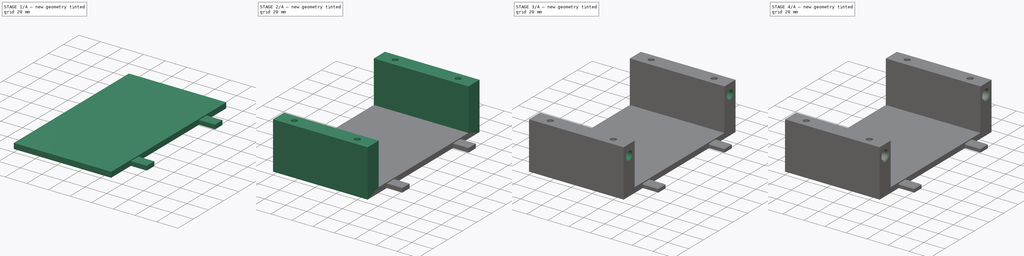
[diagram: build sequence overview — one tinted view per stage of 4, left to right]
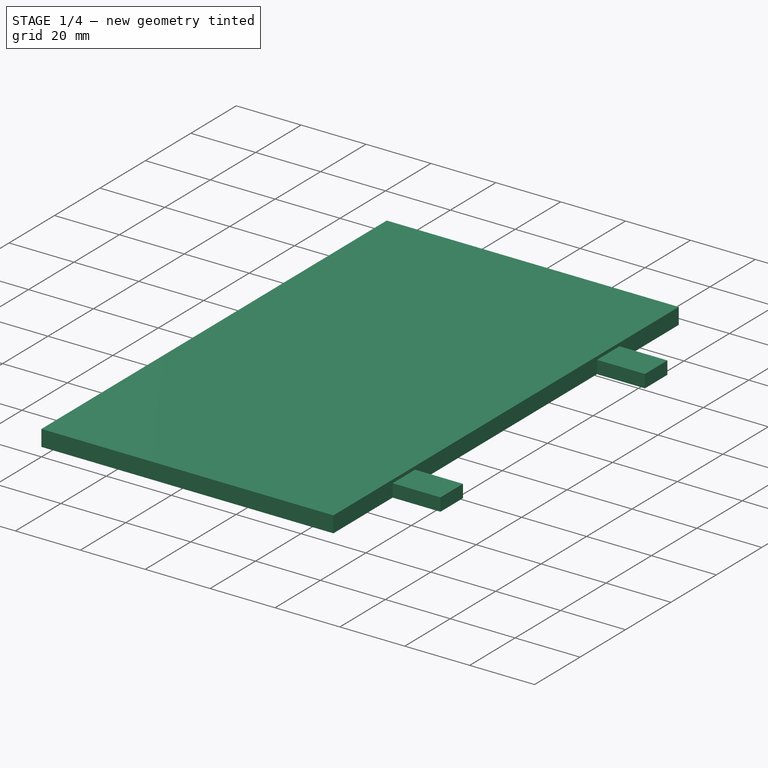
[diagram: stage 1 of 4 — iso view after this stage's code; geometry added in this stage tinted green]
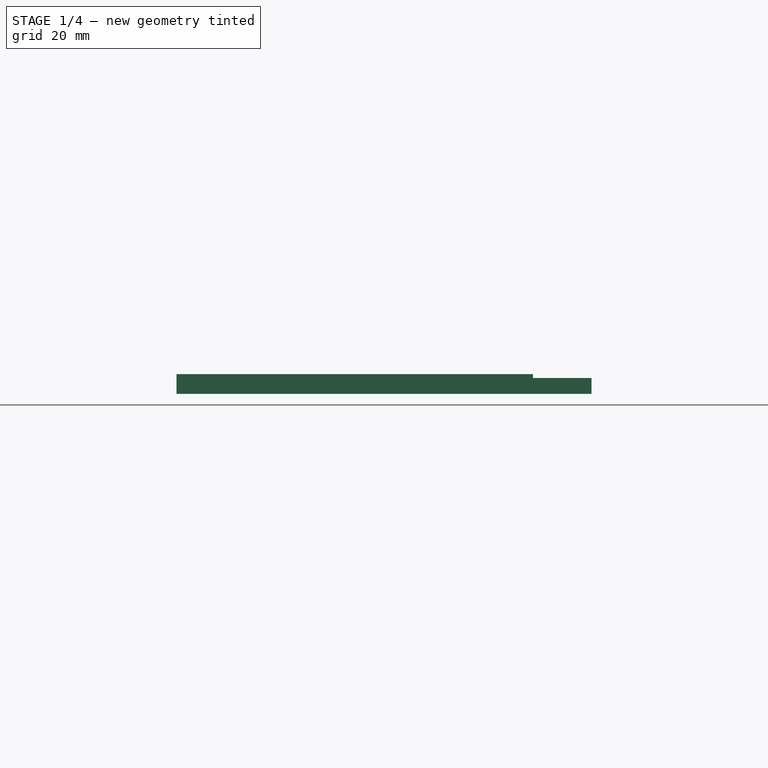
[diagram: stage 1 of 4 — front view after this stage's code; geometry added in this stage tinted green]
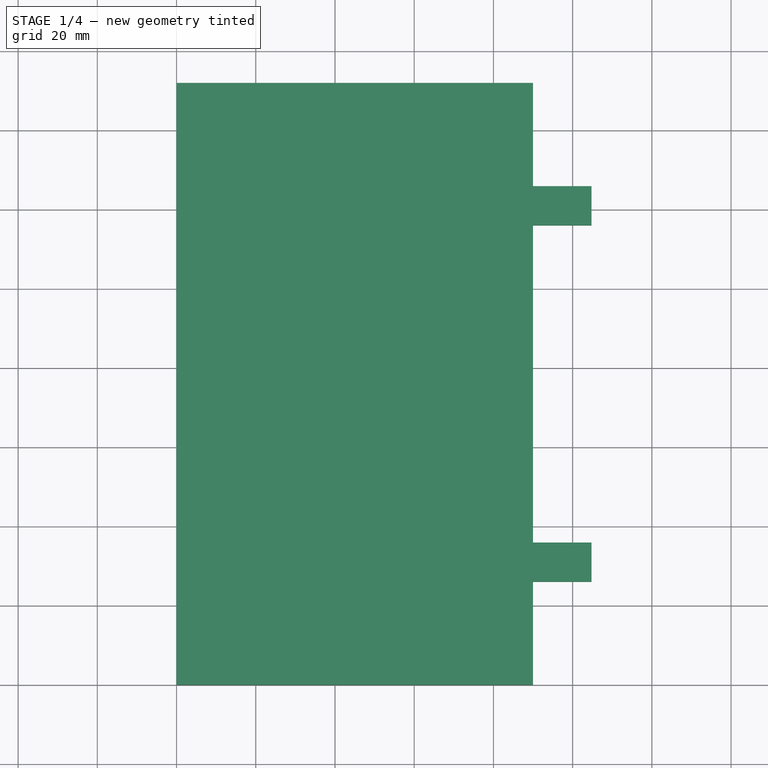
[diagram: stage 1 of 4 — top view after this stage's code; geometry added in this stage tinted green]
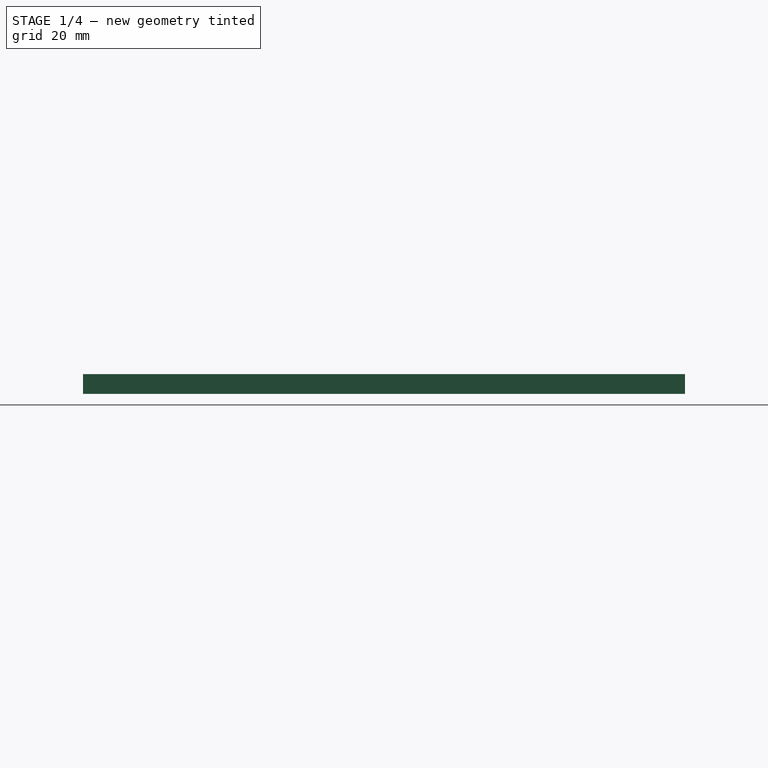
[diagram: stage 1 of 4 — right view after this stage's code; geometry added in this stage tinted green]
FCSTD DOCUMENT  (FreeCAD 1.0R39319 (Git))
Label: C1047
License: All rights reserved
objects: Sketcher::SketchObject×8, PartDesign::Pocket×5, PartDesign::Pad×3, PartDesign::Chamfer×2, PartDesign::Body×1
note: 47 computed .brp shape members not serialized (recipe doc carries the construction recipe); baked Part::Feature solids carry a one-line shape summary decoded from their .brp

FEATURE [Sketcher::SketchObject] Sketch
  ArcFitTolerance = 1e-06
  AttachmentSupport = -> [XY_Plane]
  FullyConstrained = true
  MakeInternals = false
  MapMode = 5
  sketch-geometry (4):
    g0: LineSegment StartX=0 StartY=0 StartZ=0 EndX=90 EndY=0 EndZ=0
    g1: LineSegment StartX=90 StartY=0 StartZ=0 EndX=90 EndY=152 EndZ=0
    g2: LineSegment StartX=90 StartY=152 StartZ=0 EndX=0 EndY=152 EndZ=0
    g3: LineSegment StartX=0 StartY=152 StartZ=0 EndX=0 EndY=0 EndZ=0
  constraints (11):
    c: Coincident(g0,g1)
    c: Coincident(g1,g2)
    c: Coincident(g2,g3)
    c: Coincident(g3,g0)
    c: Horizontal(g0)
    c: Horizontal(g2)
    c: Vertical(g1)
    c: Vertical(g3)
    c: Coincident(g0,g-1)
    c: DistanceY(g3,g3) = 152
    c: DistanceX(g2,g2) = 90
FEATURE [PartDesign::Pad] Pad
  Direction = (0,0,1)
  Length = 5
  Length2 = 10
  Profile = -> Sketch
  ReferenceAxis = -> Sketch [N_Axis]
  Refine = true
  Suppressed = false
  Type = 0
FEATURE [Sketcher::SketchObject] Sketch001
  ArcFitTolerance = 1e-06
  AttachmentSupport = -> [Pad]
  ExternalGeometry = -> [Pad]
  FullyConstrained = true
  MakeInternals = false
  MapMode = 5
  Placement = pos=(0,0,0) rot=(1,0,0;3.14159rad)
  sketch-geometry (13):
    g0: LineSegment [constr] StartX=90 StartY=0 StartZ=0 EndX=104.75 EndY=-26.05 EndZ=0
    g1: LineSegment [constr] StartX=90 StartY=-152 StartZ=0 EndX=104.75 EndY=-125.95 EndZ=0
    g2: LineSegment [constr] StartX=104.75 StartY=-35.95 StartZ=0 EndX=104.75 EndY=-116.05 EndZ=0
    g3: LineSegment StartX=104.75 StartY=-26.05 StartZ=0 EndX=90 EndY=-26.05 EndZ=0
    g4: LineSegment StartX=90 StartY=-26.05 StartZ=0 EndX=90 EndY=-35.95 EndZ=0
    g5: LineSegment StartX=90 StartY=-35.95 StartZ=0 EndX=104.75 EndY=-35.95 EndZ=0
    g6: LineSegment StartX=104.75 StartY=-35.95 StartZ=0 EndX=104.75 EndY=-26.05 EndZ=0
    g7: LineSegment StartX=104.75 StartY=-116.05 StartZ=0 EndX=90 EndY=-116.05 EndZ=0
    g8: LineSegment StartX=90 StartY=-116.05 StartZ=0 EndX=90 EndY=-125.95 EndZ=0
    g9: LineSegment StartX=90 StartY=-125.95 StartZ=0 EndX=104.75 EndY=-125.95 EndZ=0
    g10: LineSegment StartX=104.75 StartY=-125.95 StartZ=0 EndX=104.75 EndY=-116.05 EndZ=0
    g11: GeomPoint X=104.75 Y=-31 Z=0
    g12: GeomPoint X=104.75 Y=-121 Z=0
  constraints (32):
    c: Coincident(g0,g-5)
    c: Coincident(g1,g-5)
    c: Coincident(g3,g4)
    c: Coincident(g4,g5)
    c: Coincident(g5,g6)
    c: Coincident(g6,g3)
    c: Horizontal(g3)
    c: Horizontal(g5)
    c: Vertical(g4)
    c: Vertical(g6)
    c: Coincident(g3,g0)
    c: PointOnObject(g4,g-5)
    c: Coincident(g7,g8)
    c: Coincident(g8,g9)
    c: Coincident(g9,g10)
    c: Coincident(g10,g7)
    c: Horizontal(g7)
    c: Horizontal(g9)
    c: Vertical(g8)
    c: Vertical(g10)
    c: Coincident(g7,g2)
    c: PointOnObject(g8,g-5)
    c: Coincident(g1,g9)
    c: Coincident(g5,g2)
    c: Vertical(g2)
    c: Equal(g1,g0)
    c: Equal(g10,g6)
    c: DistanceY(g6,g6) = 9.9
    c: DistanceX(g3,g3) = 14.75
    c: Symmetric(g6,g6,g11)
    c: Symmetric(g10,g10,g12)
    c: DistanceY(g12,g11) = 90
FEATURE [PartDesign::Pad] Pad001
  BaseFeature = -> Pad
  Direction = (0,0,-1)
  Length = 4
  Length2 = 10
  Profile = -> Sketch001
  ReferenceAxis = -> Sketch001 [N_Axis]
  Refine = true
  Reversed = true
  Suppressed = false
  Type = 0
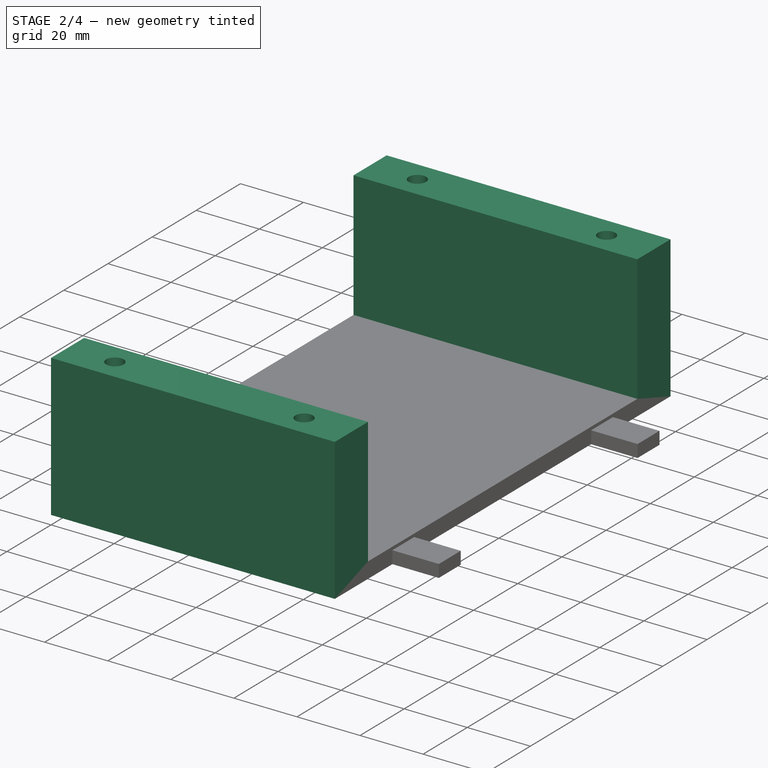
[diagram: stage 2 of 4 — iso view after this stage's code; geometry added in this stage tinted green]
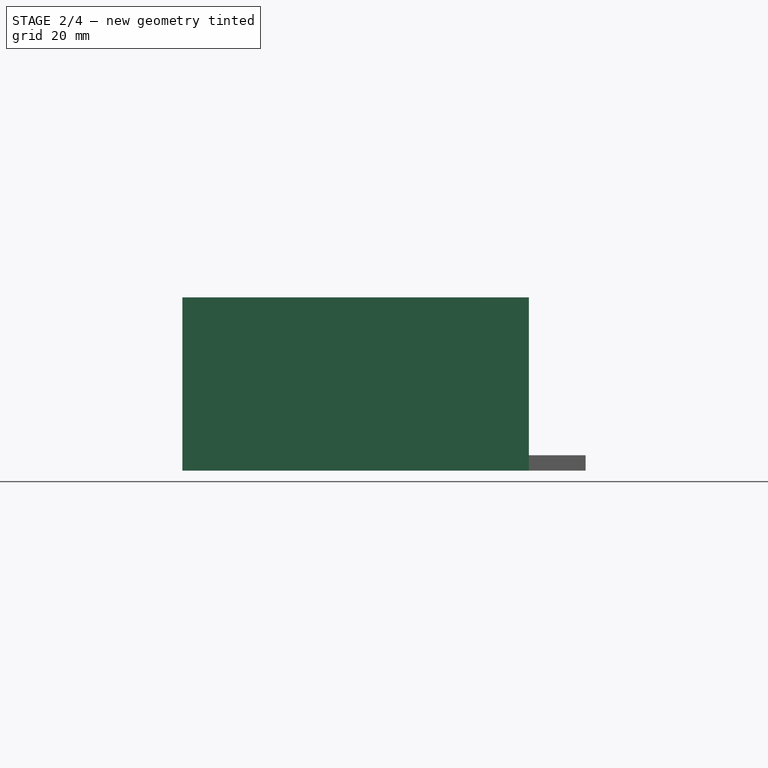
[diagram: stage 2 of 4 — front view after this stage's code; geometry added in this stage tinted green]
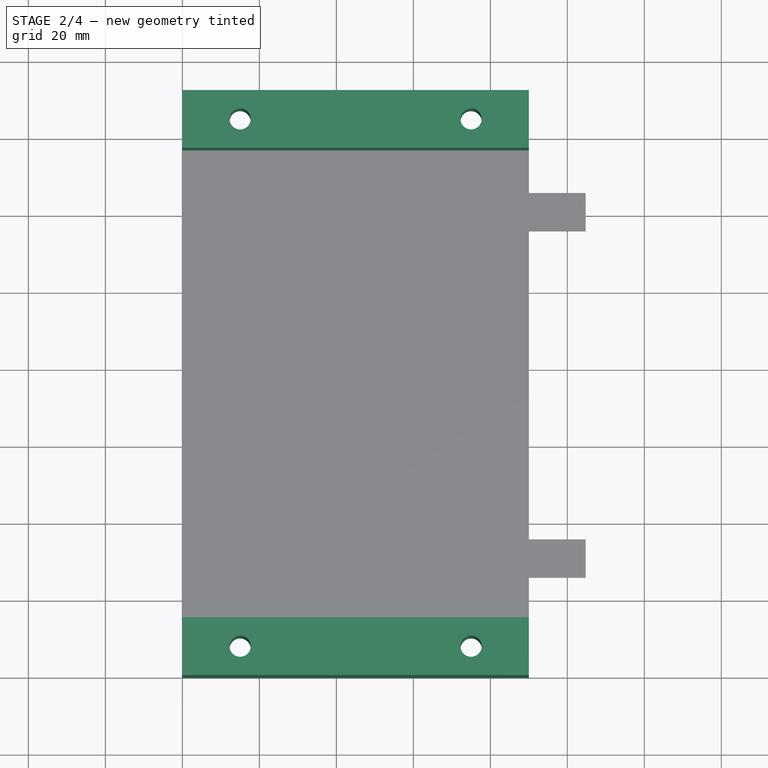
[diagram: stage 2 of 4 — top view after this stage's code; geometry added in this stage tinted green]
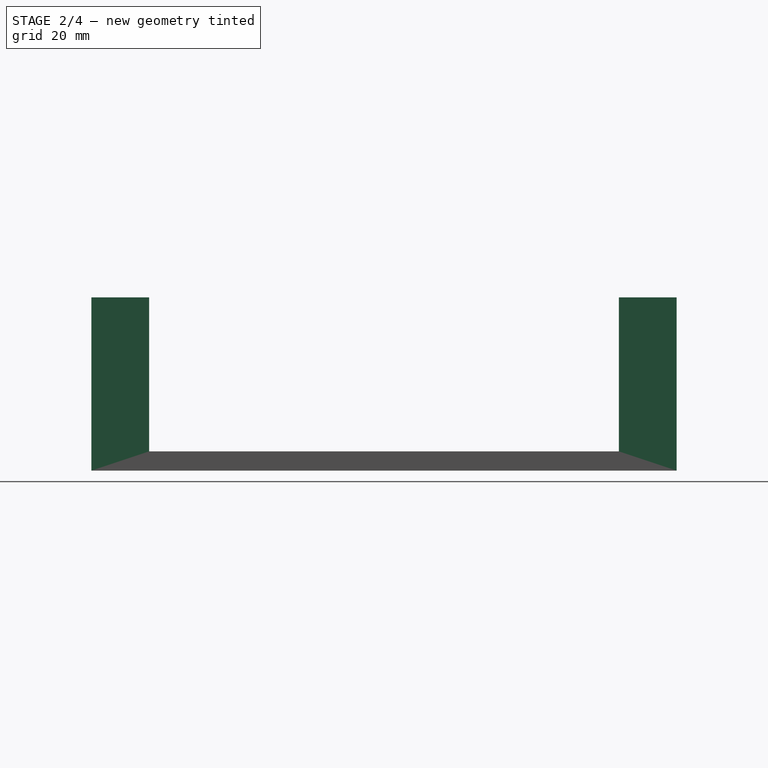
[diagram: stage 2 of 4 — right view after this stage's code; geometry added in this stage tinted green]
FEATURE [Sketcher::SketchObject] Sketch002
  ArcFitTolerance = 1e-06
  AttachmentSupport = -> [Pad001]
  ExternalGeometry = -> [Pad001]
  FullyConstrained = true
  MakeInternals = false
  MapMode = 5
  Placement = pos=(0,0,0) rot=(1,0,0;3.14159rad)
  sketch-geometry (11):
    g0: LineSegment StartX=0 StartY=-26 StartZ=0 EndX=0 EndY=-36 EndZ=0
    g1: LineSegment StartX=0 StartY=-36 StartZ=0 EndX=15 EndY=-36 EndZ=0
    g2: LineSegment StartX=15 StartY=-36 StartZ=0 EndX=15 EndY=-26 EndZ=0
    g3: LineSegment StartX=15 StartY=-26 StartZ=0 EndX=0 EndY=-26 EndZ=0
    g4: LineSegment StartX=0 StartY=-116 StartZ=0 EndX=0 EndY=-126 EndZ=0
    g5: LineSegment StartX=0 StartY=-126 StartZ=0 EndX=15 EndY=-126 EndZ=0
    g6: LineSegment StartX=15 StartY=-126 StartZ=0 EndX=15 EndY=-116 EndZ=0
    g7: LineSegment StartX=15 StartY=-116 StartZ=0 EndX=0 EndY=-116 EndZ=0
    g8: LineSegment [constr] StartX=15 StartY=-126 StartZ=0 EndX=0 EndY=-152 EndZ=0
    g9: LineSegment [constr] StartX=15 StartY=-116 StartZ=0 EndX=15 EndY=-36 EndZ=0
    g10: LineSegment [constr] StartX=15 StartY=-26 StartZ=0 EndX=0 EndY=0 EndZ=0
  constraints (30):
    c: Coincident(g0,g1)
    c: Coincident(g1,g2)
    c: Coincident(g2,g3)
    c: Coincident(g3,g0)
    c: Vertical(g0)
    c: Vertical(g2)
    c: Horizontal(g1)
    c: Horizontal(g3)
    c: PointOnObject(g0,g-3)
    c: Coincident(g4,g5)
    c: Coincident(g5,g6)
    c: Coincident(g6,g7)
    c: Coincident(g7,g4)
    c: Vertical(g4)
    c: Vertical(g6)
    c: Horizontal(g5)
    c: Horizontal(g7)
    c: PointOnObject(g4,g-3)
    c: Coincident(g8,g5)
    c: Coincident(g8,g-3)
    c: Coincident(g9,g6)
    c: Coincident(g9,g1)
    c: Vertical(g9)
    c: Coincident(g10,g2)
    c: Coincident(g10,g-1)
    c: DistanceY(g9,g9) = 80
    c: DistanceY(g2,g2) = 10
    c: DistanceX(g3,g3) = 15
    c: Equal(g6,g2)
    c: Equal(g10,g8)
FEATURE [PartDesign::Pocket] Pocket
  BaseFeature = -> Pad001
  Direction = (0,0,1)
  Length = 4
  Length2 = 5
  Profile = -> Sketch002
  ReferenceAxis = -> Sketch002 [N_Axis]
  Refine = true
  Suppressed = false
  Type = 0
FEATURE [Sketcher::SketchObject] Sketch003
  ArcFitTolerance = 1e-06
  AttachmentSupport = -> [Pocket]
  ExternalGeometry = -> [Pocket]
  FullyConstrained = true
  MakeInternals = false
  MapMode = 5
  Placement = pos=(0,0,5) rot=(0,0,1;0rad)
  sketch-geometry (8):
    g0: LineSegment StartX=90 StartY=152 StartZ=0 EndX=0 EndY=152 EndZ=0
    g1: LineSegment StartX=0 StartY=152 StartZ=0 EndX=0 EndY=137 EndZ=0
    g2: LineSegment StartX=0 StartY=137 StartZ=0 EndX=90 EndY=137 EndZ=0
    g3: LineSegment StartX=90 StartY=137 StartZ=0 EndX=90 EndY=152 EndZ=0
    g4: LineSegment StartX=0 StartY=0 StartZ=0 EndX=90 EndY=0 EndZ=0
    g5: LineSegment StartX=90 StartY=0 StartZ=0 EndX=90 EndY=15 EndZ=0
    g6: LineSegment StartX=90 StartY=15 StartZ=0 EndX=0 EndY=15 EndZ=0
    g7: LineSegment StartX=0 StartY=15 StartZ=0 EndX=0 EndY=0 EndZ=0
  constraints (20):
    c: Coincident(g0,g1)
    c: Coincident(g1,g2)
    c: Coincident(g2,g3)
    c: Coincident(g3,g0)
    c: Horizontal(g2)
    c: Vertical(g1)
    c: Vertical(g3)
    c: Coincident(g0,g-3)
    c: Coincident(g4,g5)
    c: Coincident(g5,g6)
    c: Coincident(g6,g7)
    c: Coincident(g7,g4)
    c: Horizontal(g6)
    c: Vertical(g5)
    c: Vertical(g7)
    c: Coincident(g4,g-1)
    c: Coincident(g4,g-4)
    c: Coincident(g0,g-3)
    c: Equal(g3,g5)
    c: DistanceY(g3,g3) = 15
FEATURE [PartDesign::Pad] Pad002
  BaseFeature = -> Pocket
  Direction = (0,0,1)
  Length = 40
  Length2 = 10
  Profile = -> Sketch003
  ReferenceAxis = -> Sketch003 [N_Axis]
  Refine = true
  Suppressed = false
  Type = 0
FEATURE [Sketcher::SketchObject] Sketch004
  ArcFitTolerance = 1e-06
  AttachmentSupport = -> [Pad002]
  ExternalGeometry = -> [Pad002]
  FullyConstrained = true
  MakeInternals = false
  MapMode = 5
  Placement = pos=(0,0,0) rot=(1,0,0;3.14159rad)
  sketch-geometry (10):
    g0: Circle CenterX=15 CenterY=-7.5 CenterZ=0 NormalX=0 NormalY=0 NormalZ=1 AngleXU=0 Radius=2.75
    g1: Circle CenterX=75 CenterY=-7.5 CenterZ=0 NormalX=0 NormalY=0 NormalZ=1 AngleXU=0 Radius=2.75
    g2: Circle CenterX=75 CenterY=-144.5 CenterZ=0 NormalX=0 NormalY=0 NormalZ=1 AngleXU=0 Radius=2.75
    g3: Circle CenterX=15 CenterY=-144.5 CenterZ=0 NormalX=0 NormalY=0 NormalZ=1 AngleXU=0 Radius=2.75
    g4: LineSegment [constr] StartX=75 StartY=-7.5 StartZ=0 EndX=15 EndY=-7.5 EndZ=0
    g5: LineSegment [constr] StartX=15 StartY=-7.5 StartZ=0 EndX=15 EndY=-144.5 EndZ=0
    g6: LineSegment [constr] StartX=15 StartY=-144.5 StartZ=0 EndX=75 EndY=-144.5 EndZ=0
    g7: LineSegment [constr] StartX=75 StartY=-144.5 StartZ=0 EndX=75 EndY=-7.5 EndZ=0
    g8: LineSegment [constr] StartX=75 StartY=-7.5 StartZ=0 EndX=90 EndY=0 EndZ=0
    g9: LineSegment [constr] StartX=75 StartY=-144.5 StartZ=0 EndX=90 EndY=-152 EndZ=0
  constraints (25):
    c: Equal(g3,g2)
    c: Equal(g0,g1)
    c: Equal(g1,g2)
    c: Diameter(g3) = 5.5
    c: Coincident(g4,g1)
    c: Coincident(g4,g0)
    c: Horizontal(g4)
    c: Coincident(g5,g0)
    c: Coincident(g5,g3)
    c: Vertical(g5)
    c: Coincident(g6,g3)
    c: Coincident(g6,g2)
    c: Coincident(g7,g2)
    c: Coincident(g7,g1)
    c: Horizontal(g6)
    c: Vertical(g7)
    c: DistanceX(g4,g4) = 60
    c: DistanceY(g5,g5) = 137
    c: DistanceX(g-1,g0) = 15
    c: DistanceX(g1,g-3) = 15
    c: Coincident(g8,g1)
    c: Coincident(g8,g-3)
    c: Coincident(g9,g2)
    c: Coincident(g9,g-5)
    c: Equal(g9,g8)
FEATURE [PartDesign::Pocket] Pocket001
  BaseFeature = -> Pad002
  Direction = (0,0,1)
  Length = 5
  Length2 = 5
  Profile = -> Sketch004
  ReferenceAxis = -> Sketch004 [N_Axis]
  Refine = true
  Suppressed = false
  Type = 1
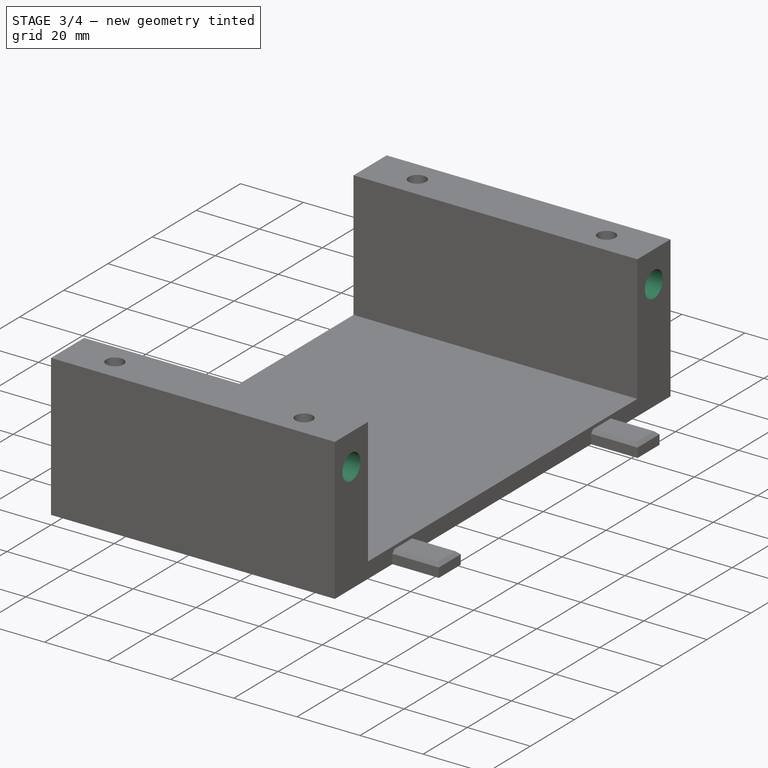
[diagram: stage 3 of 4 — iso view after this stage's code; geometry added in this stage tinted green]
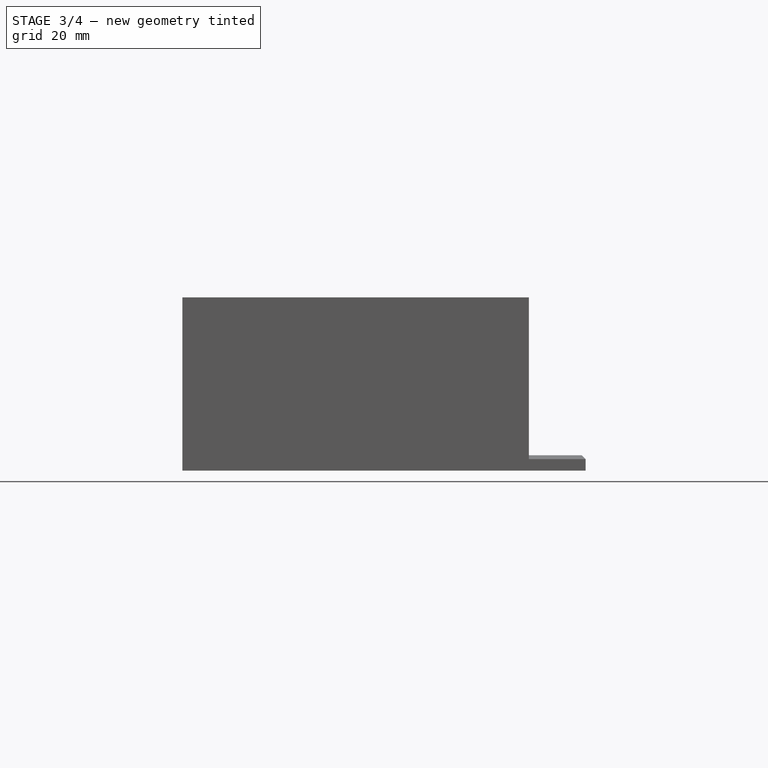
[diagram: stage 3 of 4 — front view after this stage's code; geometry added in this stage tinted green]
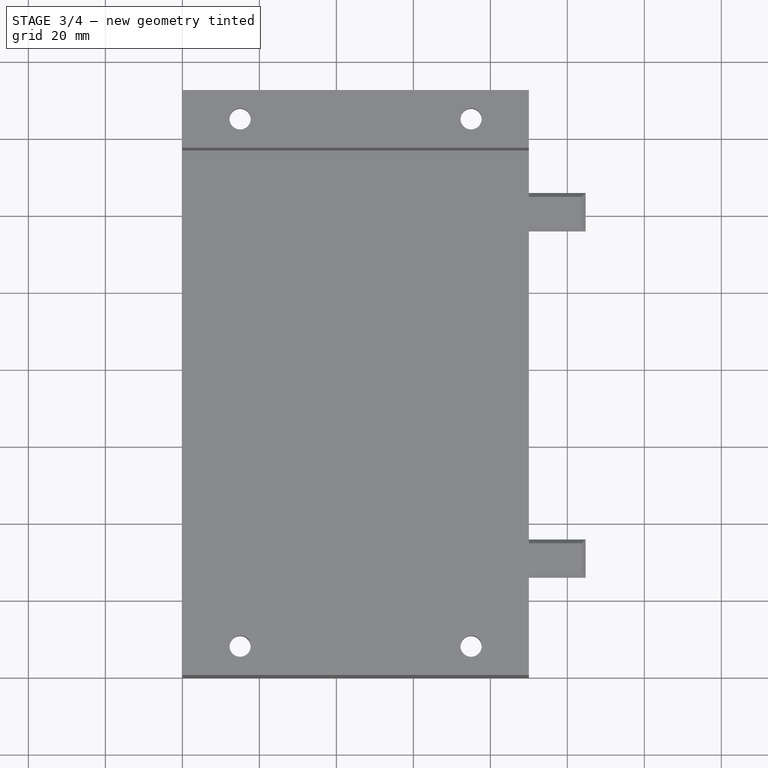
[diagram: stage 3 of 4 — top view after this stage's code; geometry added in this stage tinted green]
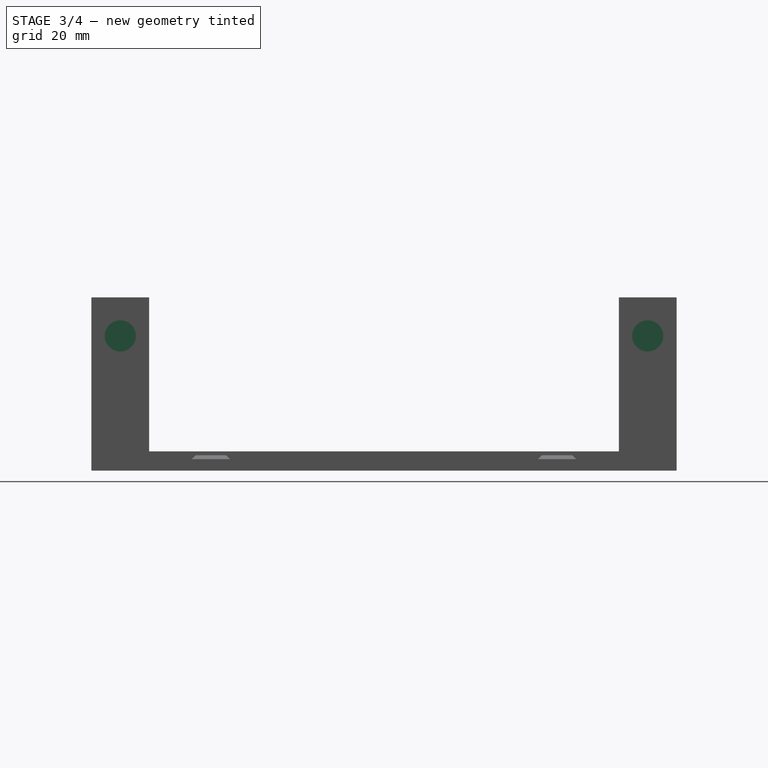
[diagram: stage 3 of 4 — right view after this stage's code; geometry added in this stage tinted green]
FEATURE [Sketcher::SketchObject] Sketch005
  ArcFitTolerance = 1e-06
  AttachmentSupport = -> [Pocket001]
  ExternalGeometry = -> [Pocket001]
  FullyConstrained = true
  MakeInternals = false
  MapMode = 5
  Placement = pos=(0,0,0) rot=(1,0,0;3.14159rad)
  sketch-geometry (4):
    g0: Circle CenterX=15 CenterY=-7.5 CenterZ=0 NormalX=0 NormalY=0 NormalZ=1 AngleXU=0 Radius=5
    g1: Circle CenterX=75 CenterY=-7.5 CenterZ=0 NormalX=0 NormalY=0 NormalZ=1 AngleXU=0 Radius=5
    g2: Circle CenterX=75 CenterY=-144.5 CenterZ=0 NormalX=0 NormalY=0 NormalZ=1 AngleXU=0 Radius=5
    g3: Circle CenterX=15 CenterY=-144.5 CenterZ=0 NormalX=0 NormalY=0 NormalZ=1 AngleXU=0 Radius=5
  constraints (8):
    c: Coincident(g0,g-3)
    c: Coincident(g1,g-4)
    c: Coincident(g2,g-5)
    c: Coincident(g3,g-6)
    c: Equal(g1,g0)
    c: Equal(g0,g3)
    c: Equal(g3,g2)
    c: Diameter(g3) = 10
FEATURE [PartDesign::Pocket] Pocket002
  BaseFeature = -> Pocket001
  Direction = (0,0,1)
  Length = 34
  Length2 = 5
  Profile = -> Sketch005
  ReferenceAxis = -> Sketch005 [N_Axis]
  Refine = true
  Suppressed = false
  Type = 0
FEATURE [PartDesign::Chamfer] Chamfer
  Angle = 45
  Base = -> Pocket002 [Edge65,Edge69,Edge71,Edge59,Edge61,Edge55,Edge8,Edge6,Edge4,Edge16,Edge14,Edge12]
  BaseFeature = -> Pocket002
  ChamferType = 0
  FlipDirection = false
  Refine = true
  Size = 1
  Size2 = 1
  SupportTransform = false
  Suppressed = false
  UseAllEdges = false
FEATURE [Sketcher::SketchObject] Sketch006
  ArcFitTolerance = 1e-06
  AttachmentSupport = -> [Chamfer]
  ExternalGeometry = -> [Chamfer]
  FullyConstrained = true
  MakeInternals = false
  MapMode = 5
  Placement = pos=(90,0,0) rot=(0.57735,0.57735,0.57735;2.0944rad)
  sketch-geometry (6):
    g0: Circle CenterX=7.5 CenterY=35 CenterZ=0 NormalX=0 NormalY=0 NormalZ=1 AngleXU=0 Radius=4.05
    g1: Circle CenterX=144.5 CenterY=35 CenterZ=0 NormalX=0 NormalY=0 NormalZ=1 AngleXU=0 Radius=4.05
    g2: LineSegment [constr] StartX=137 StartY=45 StartZ=0 EndX=144.5 EndY=35 EndZ=0
    g3: LineSegment [constr] StartX=144.5 StartY=35 StartZ=0 EndX=152 EndY=45 EndZ=0
    g4: LineSegment [constr] StartX=7.5 StartY=35 StartZ=0 EndX=0 EndY=45 EndZ=0
    g5: LineSegment [constr] StartX=7.5 StartY=35 StartZ=0 EndX=15 EndY=45 EndZ=0
  constraints (14):
    c: Coincident(g2,g-4)
    c: Coincident(g2,g1)
    c: Coincident(g3,g1)
    c: Coincident(g4,g0)
    c: Coincident(g4,g-3)
    c: Coincident(g5,g0)
    c: Coincident(g5,g-3)
    c: Coincident(g3,g-4)
    c: Equal(g3,g2)
    c: Equal(g2,g5)
    c: Equal(g5,g4)
    c: Diameter(g0) = 8.1
    c: DistanceY(g2,g2) = 10
    c: Equal(g1,g0)
FEATURE [PartDesign::Pocket] Pocket003
  BaseFeature = -> Chamfer
  Direction = (-1,0,0)
  Length = 9
  Length2 = 5
  Profile = -> Sketch006
  ReferenceAxis = -> Sketch006 [N_Axis]
  Refine = true
  Suppressed = false
  Type = 0
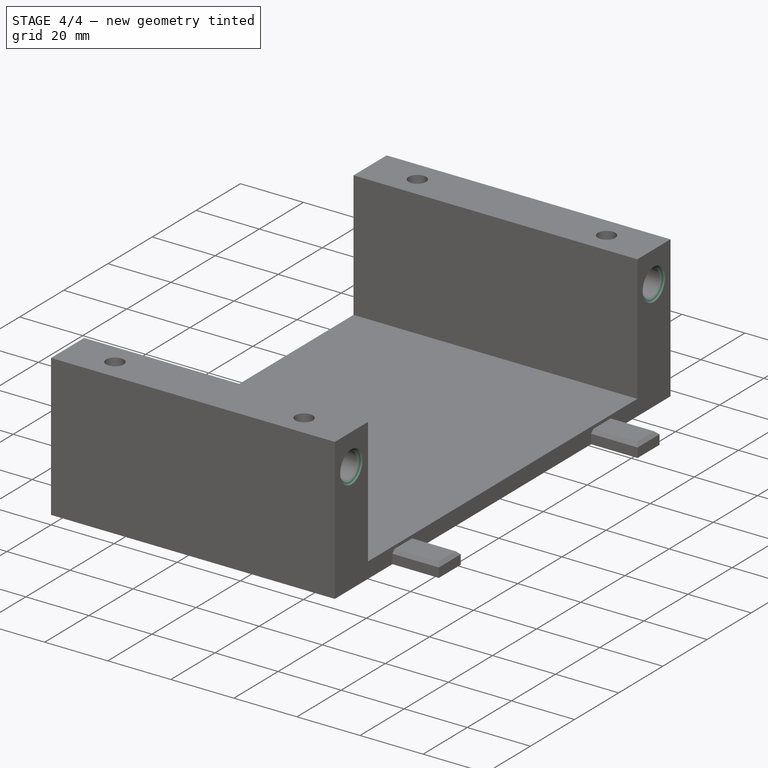
[diagram: stage 4 of 4 — iso view after this stage's code; geometry added in this stage tinted green]
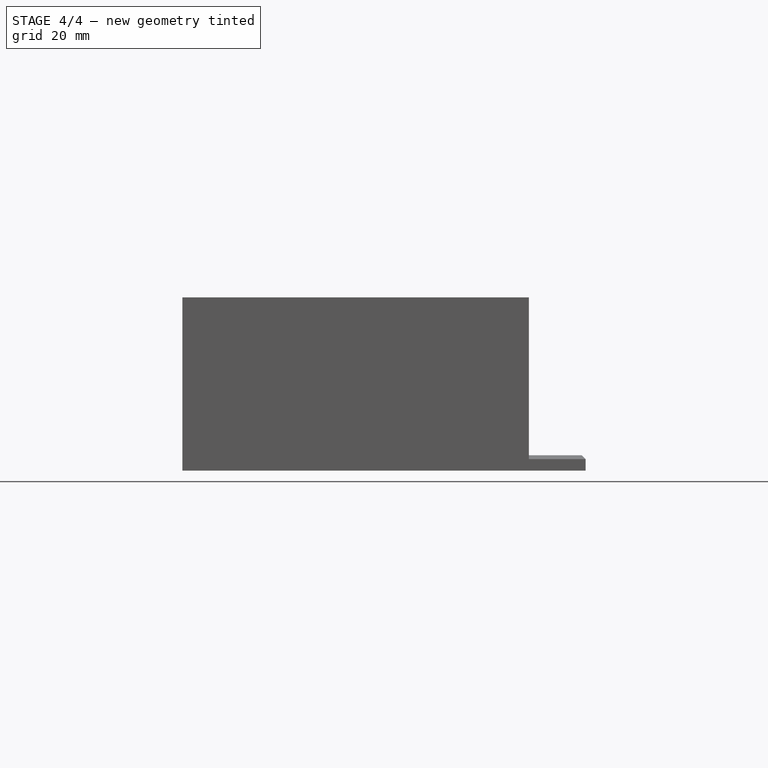
[diagram: stage 4 of 4 — front view after this stage's code; geometry added in this stage tinted green]
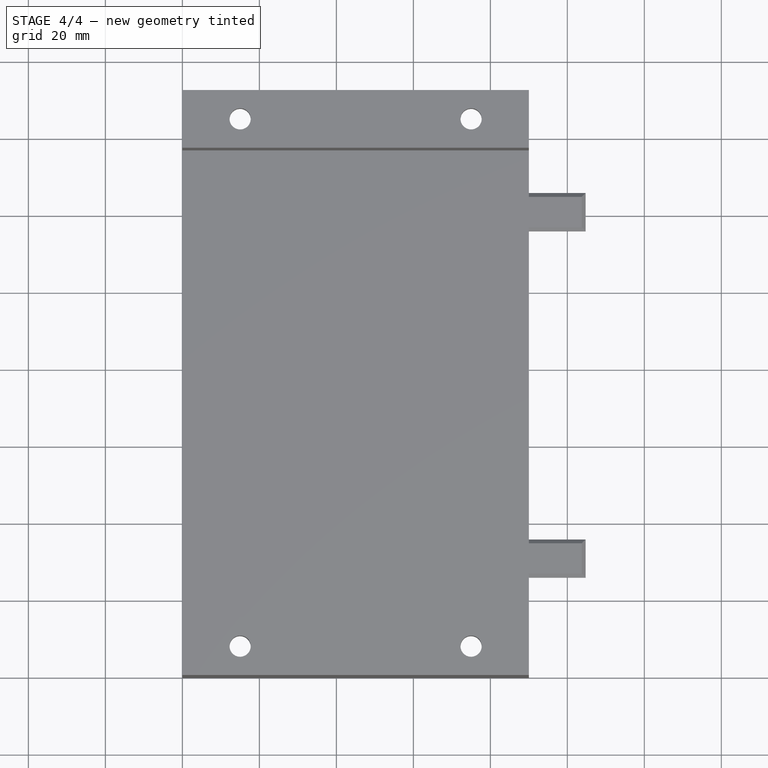
[diagram: stage 4 of 4 — top view after this stage's code; geometry added in this stage tinted green]
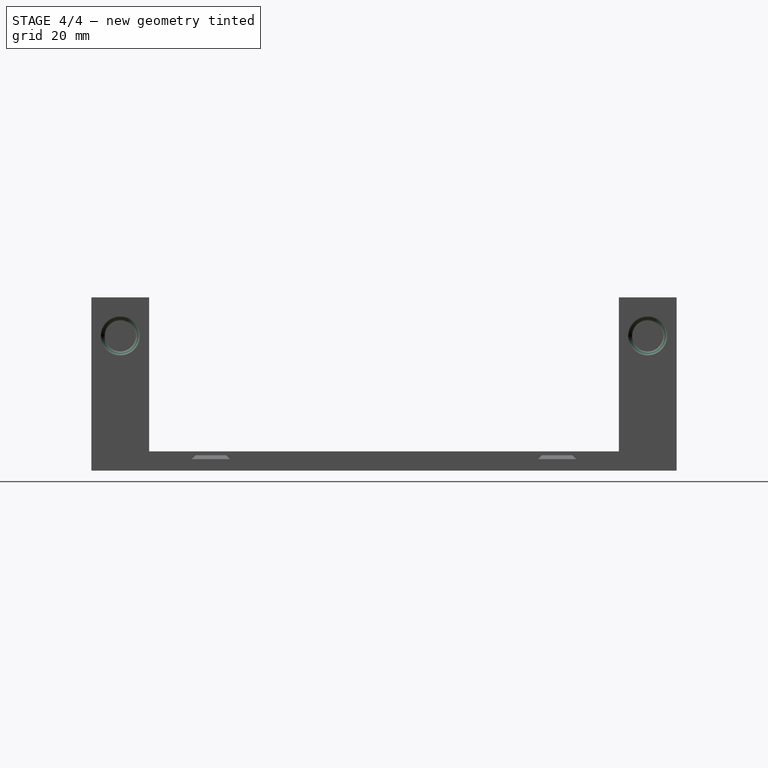
[diagram: stage 4 of 4 — right view after this stage's code; geometry added in this stage tinted green]
FEATURE [Sketcher::SketchObject] Sketch007
  ArcFitTolerance = 1e-06
  AttachmentSupport = -> [Pocket003]
  ExternalGeometry = -> [Pocket003]
  FullyConstrained = true
  MakeInternals = false
  MapMode = 5
  Placement = pos=(0,0,0) rot=(0.57735,-0.57735,-0.57735;2.0944rad)
  sketch-geometry (2):
    g0: Circle CenterX=-144.5 CenterY=35 CenterZ=0 NormalX=0 NormalY=0 NormalZ=1 AngleXU=0 Radius=4.05
    g1: Circle CenterX=-7.5 CenterY=35 CenterZ=0 NormalX=0 NormalY=0 NormalZ=1 AngleXU=0 Radius=4.05
  constraints (4):
    c: Coincident(g0,g-4)
    c: Coincident(g1,g-3)
    c: Equal(g-3,g1)
    c: Equal(g-4,g0)
FEATURE [PartDesign::Pocket] Pocket004
  BaseFeature = -> Pocket003
  Direction = (1,0,0)
  Length = 9
  Length2 = 5
  Profile = -> Sketch007
  ReferenceAxis = -> Sketch007 [N_Axis]
  Refine = true
  Suppressed = false
  Type = 0
FEATURE [PartDesign::Chamfer] Chamfer001
  Angle = 45
  Base = -> Pocket004 [Edge43,Edge42,Edge67,Edge66]
  BaseFeature = -> Pocket004
  ChamferType = 0
  FlipDirection = false
  Refine = true
  Size = 1
  Size2 = 1
  SupportTransform = false
  Suppressed = false
  UseAllEdges = false
FEATURE [PartDesign::Body] Body  label="C1047"
  AllowCompound = false
  Group = -> [Sketch,Pad,Sketch001,Pad001,Sketch002,Pocket,Sketch003,Pad002,Sketch004,Pocket001,Sketch005,Pocket002,Chamfer,Sketch006,Pocket003,Sketch007,Pocket004,Chamfer001]
  Origin = -> Origin
  Tip = -> Chamfer001
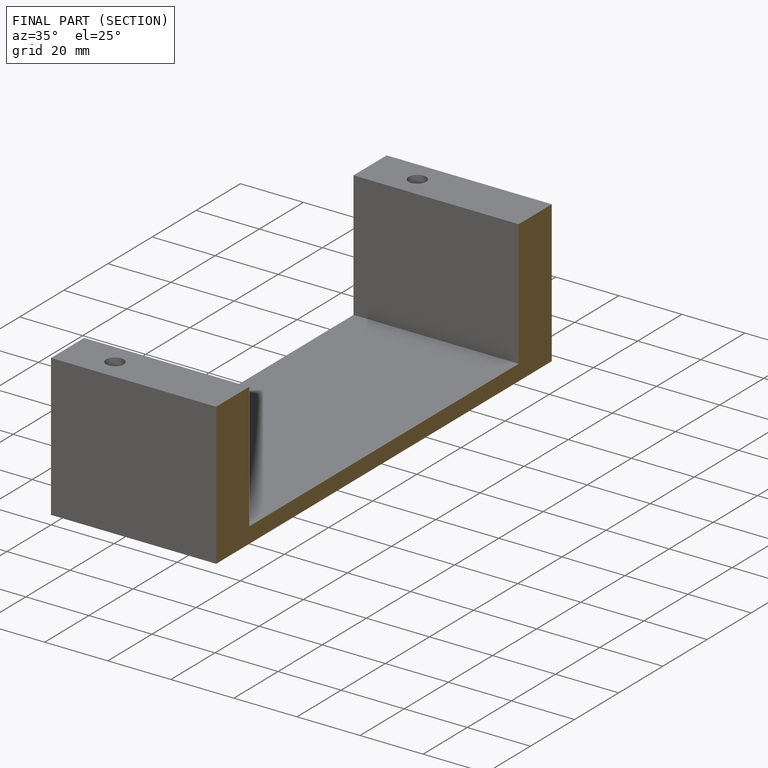
[diagram: finished part — half-section view (interior)]
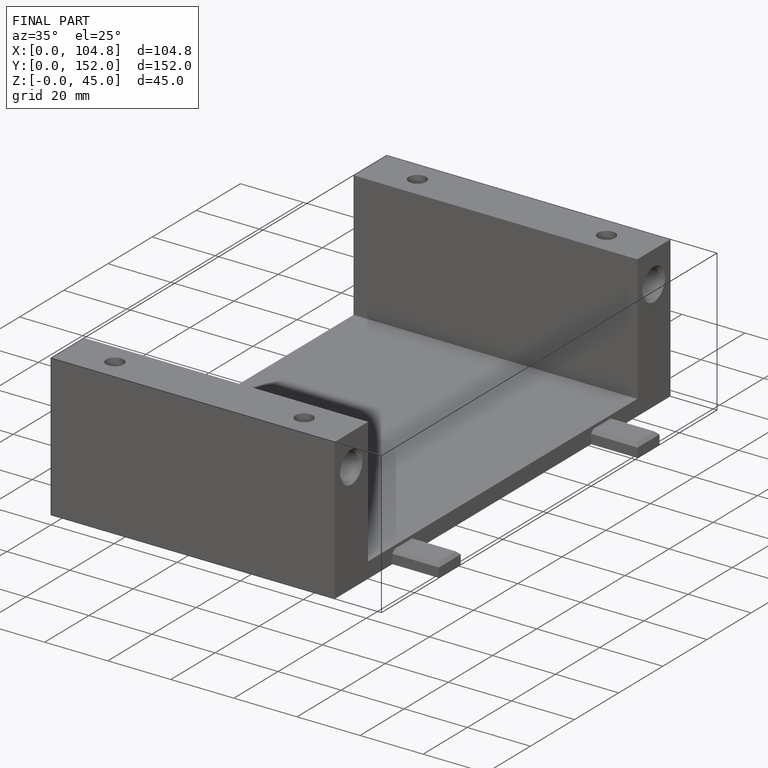
[diagram: finished part — iso view with bounding-box wireframe]
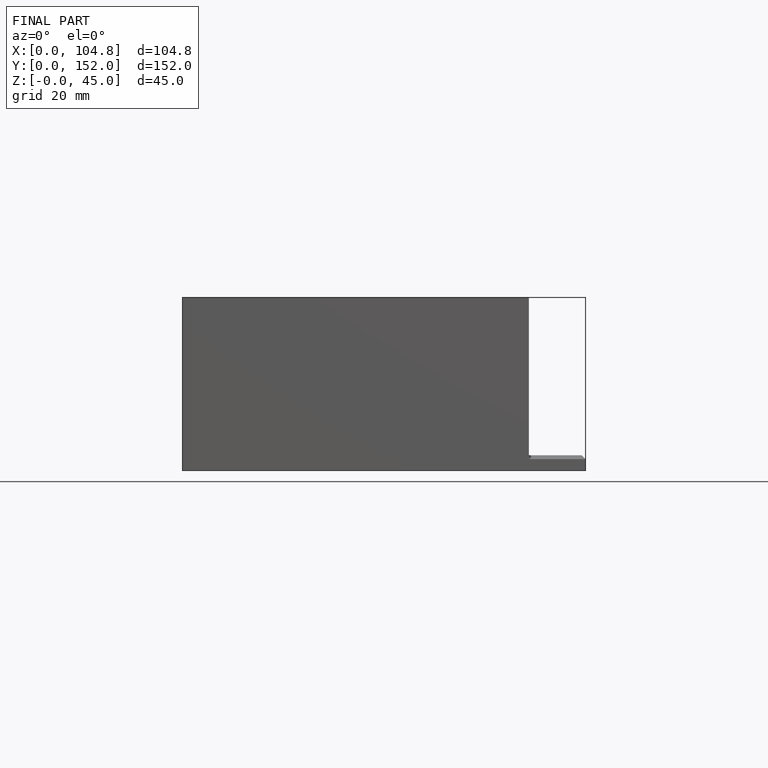
[diagram: finished part — front view with bounding-box wireframe]
